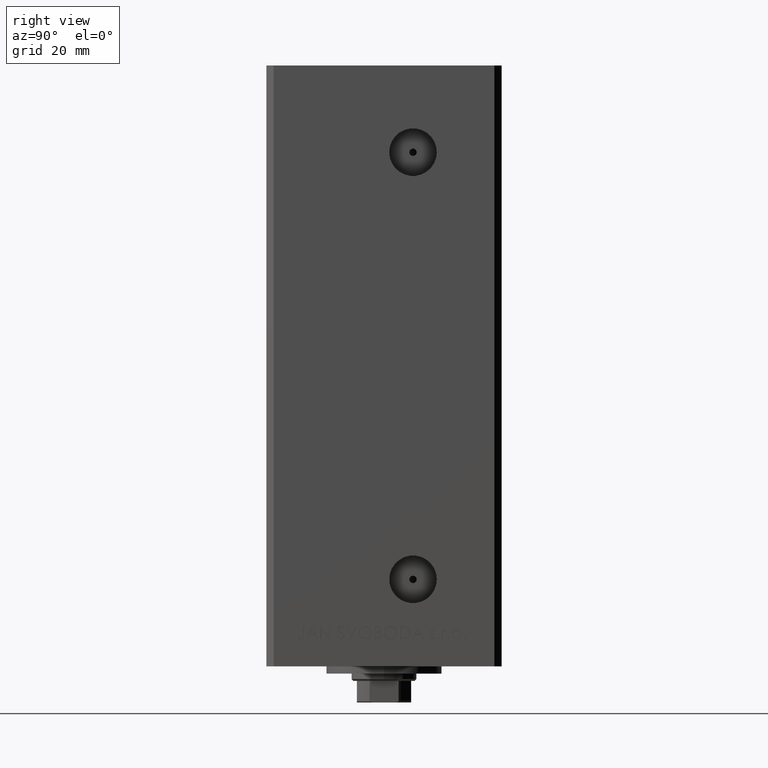
[diagram: clean part render]
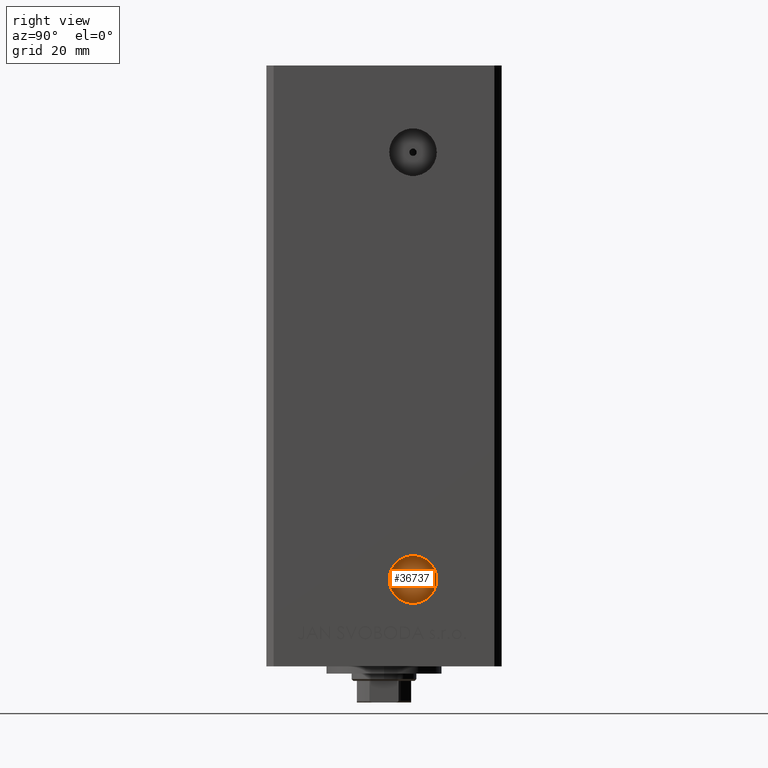
[diagram: same view with one face highlighted and labeled with its STEP entity id]
A machine part, right view. The second image highlights one B-rep face of the part: STEP entity #36737.
In plain terms, the highlighted planar face has unit normal (1, -0, 0).
Its self-contained STEP definition (entity closure, byte-faithful):
#690 = DIRECTION ( 'NONE',  ( 0.000000000000000000, 1.000000000000000000, 0.000000000000000000 ) ) ;
#3339 = ORIENTED_EDGE ( 'NONE', *, *, #42715, .F. ) ;
#4796 = DIRECTION ( 'NONE',  ( 1.000000000000000000, -2.275047181608927644E-16, 0.000000000000000000 ) ) ;
#5278 = ORIENTED_EDGE ( 'NONE', *, *, #21958, .T. ) ;
#6206 = EDGE_CURVE ( 'NONE', #42933, #10032, #38491, .T. ) ;
#7424 = EDGE_CURVE ( 'NONE', #42189, #45398, #42502, .T. ) ;
#8477 = FACE_OUTER_BOUND ( 'NONE', #23803, .T. ) ;
#9166 = AXIS2_PLACEMENT_3D ( 'NONE', #39939, #4796, #20002 ) ;
#10032 = VERTEX_POINT ( 'NONE', #21965 ) ;
#10788 = AXIS2_PLACEMENT_3D ( 'NONE', #33313, #24856, #29331 ) ;
#12952 = CARTESIAN_POINT ( 'NONE',  ( 24.50000000000000000, 14.58000000000000007, 8.999999999999994671 ) ) ;
#13734 = AXIS2_PLACEMENT_3D ( 'NONE', #19948, #27926, #35157 ) ;
#13936 = CARTESIAN_POINT ( 'NONE',  ( 24.50000000000000000, 7.999999999999994671, 8.999999999999994671 ) ) ;
#18845 = DIRECTION ( 'NONE',  ( 0.000000000000000000, 1.000000000000000000, 0.000000000000000000 ) ) ;
#19487 = EDGE_LOOP ( 'NONE', ( #22121, #3339 ) ) ;
#19948 = CARTESIAN_POINT ( 'NONE',  ( 24.50000000000000000, 7.999999999999994671, 8.999999999999994671 ) ) ;
#20002 = DIRECTION ( 'NONE',  ( 0.000000000000000000, 1.000000000000000000, 0.000000000000000000 ) ) ;
#20514 = ORIENTED_EDGE ( 'NONE', *, *, #6206, .T. ) ;
#21022 = AXIS2_PLACEMENT_3D ( 'NONE', #13936, #38047, #18845 ) ;
#21660 = CARTESIAN_POINT ( 'NONE',  ( 24.50000000000000000, 8.999999999999994671, 8.999999999999994671 ) ) ;
#21958 = EDGE_CURVE ( 'NONE', #10032, #42933, #40278, .T. ) ;
#21965 = CARTESIAN_POINT ( 'NONE',  ( 24.50000000000000000, 1.419999999999989049, 8.999999999999994671 ) ) ;
#22121 = ORIENTED_EDGE ( 'NONE', *, *, #7424, .F. ) ;
#23803 = EDGE_LOOP ( 'NONE', ( #20514, #5278 ) ) ;
#24856 = DIRECTION ( 'NONE',  ( 1.000000000000000000, -2.275047181608927644E-16, 0.000000000000000000 ) ) ;
#27460 = CIRCLE ( 'NONE', #9166, 0.9999999999999991118 ) ;
#27926 = DIRECTION ( 'NONE',  ( 1.000000000000000000, -2.275047181608927644E-16, 0.000000000000000000 ) ) ;
#29331 = DIRECTION ( 'NONE',  ( 0.000000000000000000, 1.000000000000000000, 0.000000000000000000 ) ) ;
#33313 = CARTESIAN_POINT ( 'NONE',  ( 24.50000000000000000, 7.999999999999994671, 8.999999999999994671 ) ) ;
#33721 = AXIS2_PLACEMENT_3D ( 'NONE', #34837, #39563, #690 ) ;
#34837 = CARTESIAN_POINT ( 'NONE',  ( 24.50000000000000000, 7.999999999999994671, 8.999999999999994671 ) ) ;
#35157 = DIRECTION ( 'NONE',  ( 2.275047181608927644E-16, 1.000000000000000000, 0.000000000000000000 ) ) ;
#35806 = FACE_BOUND ( 'NONE', #19487, .T. ) ;
#36737 = ADVANCED_FACE ( 'NONE', ( #35806, #8477 ), #39393, .T. ) ;
#38034 = CARTESIAN_POINT ( 'NONE',  ( 24.50000000000000000, 6.999999999999994671, 8.999999999999994671 ) ) ;
#38047 = DIRECTION ( 'NONE',  ( 1.000000000000000000, -2.275047181608927644E-16, 0.000000000000000000 ) ) ;
#38491 = CIRCLE ( 'NONE', #33721, 6.580000000000006288 ) ;
#39393 = PLANE ( 'NONE',  #13734 ) ;
#39563 = DIRECTION ( 'NONE',  ( 1.000000000000000000, -2.275047181608927644E-16, 0.000000000000000000 ) ) ;
#39939 = CARTESIAN_POINT ( 'NONE',  ( 24.50000000000000000, 7.999999999999994671, 8.999999999999994671 ) ) ;
#40278 = CIRCLE ( 'NONE', #10788, 6.580000000000006288 ) ;
#42189 = VERTEX_POINT ( 'NONE', #21660 ) ;
#42502 = CIRCLE ( 'NONE', #21022, 0.9999999999999991118 ) ;
#42715 = EDGE_CURVE ( 'NONE', #45398, #42189, #27460, .T. ) ;
#42933 = VERTEX_POINT ( 'NONE', #12952 ) ;
#45398 = VERTEX_POINT ( 'NONE', #38034 ) ;